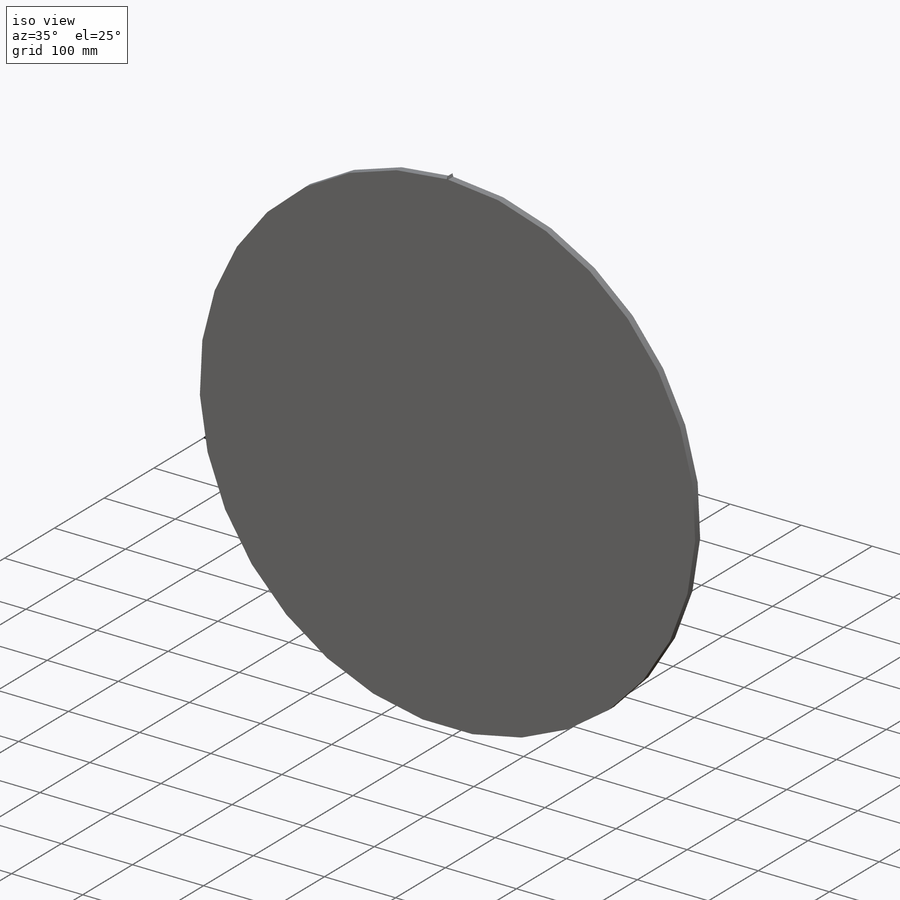
[diagram: iso view]
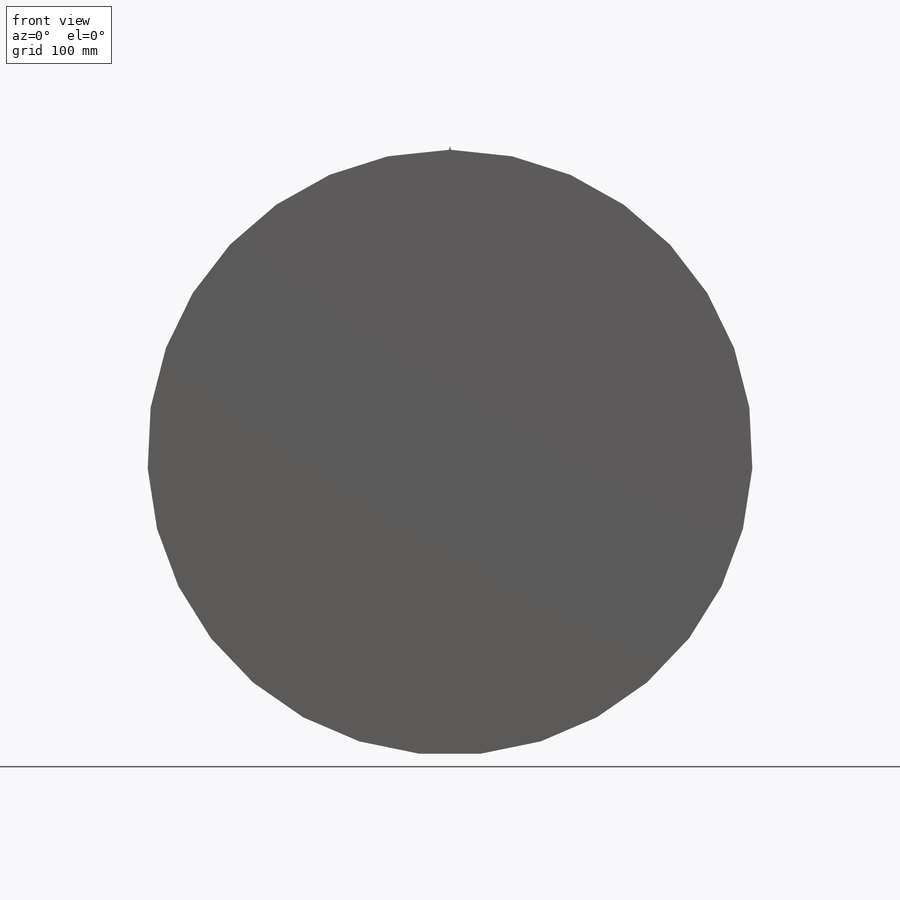
[diagram: front view]
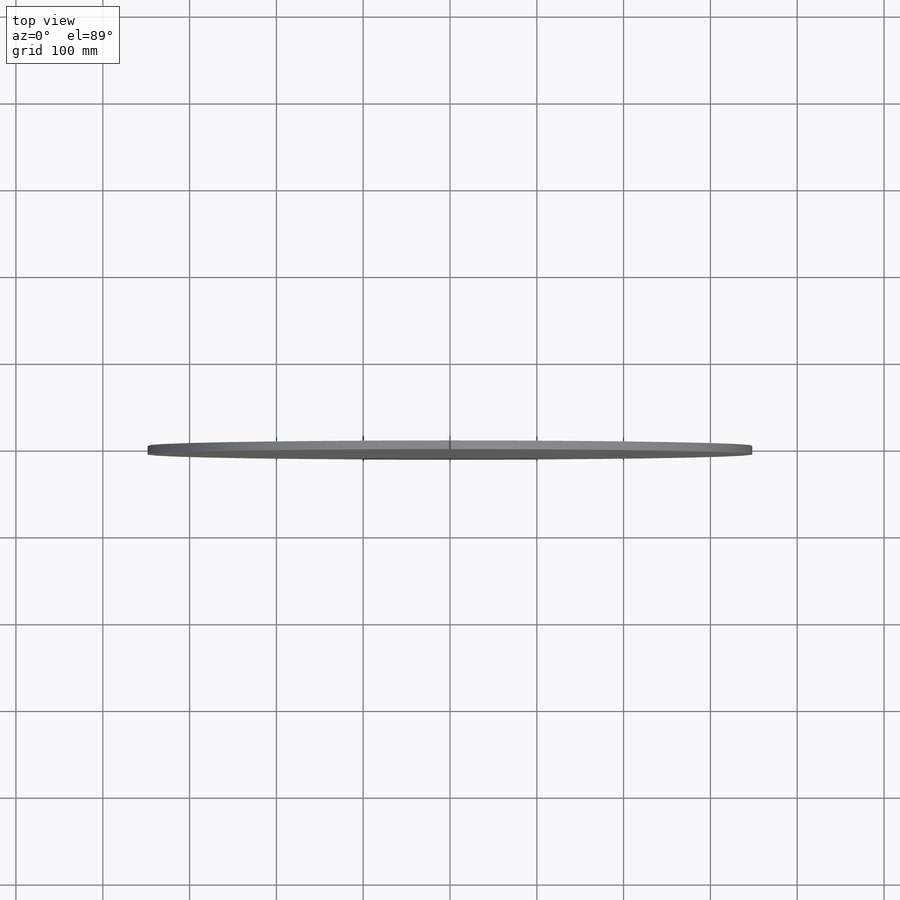
[diagram: top view]
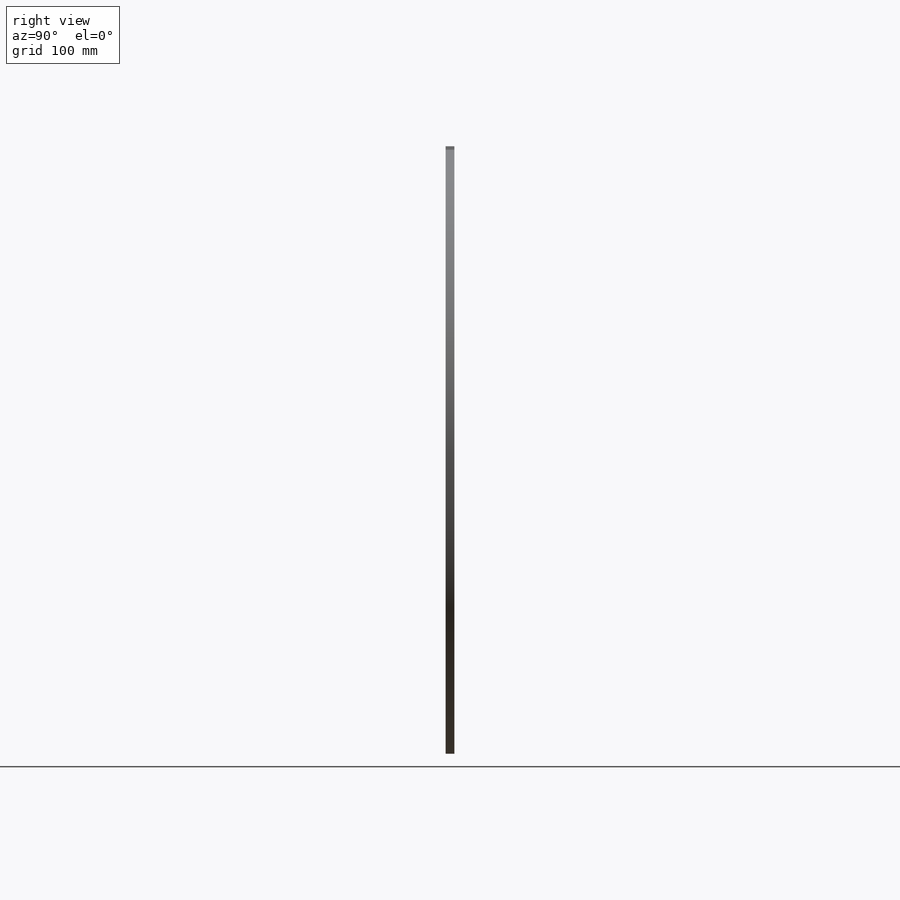
[diagram: right view]
SOLIDWORKS PART (.sldprt)
format: sldprt  version: not decoded by parser v0  size: 387,584 bytes
history: native  units: mm
features: sketch x3, pattern_circular x2, material x1, extrude x1 + 1 further entry (+12 scaffold rows collapsed)
feature tree (20):
  scaffold x12  (default folders/planes/origin — collapsed)
  material  "Material <not specified>"
  "Design Table"
  sketch  "Pitch Diameter"  dims[D1=700.0mm]
  sketch  "Sketch1"  dims[c1.D1=14.0mm c1.D2=5.0mm c1.D3=14.0mm c1.D4=~22.241922mm c2.D1=~5.360874mm c2.D2=~9.467075mm c3.D1=0.0mm c3.D2=0.0mm c3.D3=~0.117357mm c3.D4=~0.231211mm c3.D5=~0.341612mm c3.D6=~0.448611mm c3.D7=~0.55226mm c3.D8=~0.652611mm c3.D9=~0.749714mm c3.D10=~0.843621mm c3.D11=~0.934384mm c3.D12=~1.022056mm c3.D13=~1.023772mm c3.D14=~1.025489mm c3.D15=~1.029893mm c3.D16=~1.035776mm c3.D17=~1.044018mm c3.D18=~1.056206mm c3.D19=~1.075357mm c3.D20=~1.107386mm c3.D21=~1.163493mm c3.D22=~1.259765mm c3.D23=~1.397883mm c3.D24=0.0mm c3.D25=~352.869006mm c3.D26=~352.461872mm c3.D27=~352.06036mm c3.D28=~351.664493mm c3.D29=~351.274293mm c3.D30=~350.889783mm c3.D31=~350.510983mm c3.D32=~350.137915mm c3.D33=349.7706mm c3.D34=~349.409058mm c3.D35=~349.05331mm c3.D36=~349.046673mm c3.D37=~349.040037mm c3.D38=~349.024944mm c3.D39=~349.007302mm c3.D40=~348.986055mm c3.D41=~348.959666mm c3.D42=~348.925994mm c3.D43=~348.882538mm c3.D44=~348.828636mm c3.D45=~348.77362mm c3.D46=~348.747198mm]
  extrude  "Tooth"  Depth=10mm
  pattern_circular  "Teeth"  Count=2 Angle=18deg
  sketch  "Sketch6"  dims[D1=702.0mm]
  pattern_circular  "Addendum"  [2 undecoded]
decode coverage: 5 of 6 modeling features carry decoded parameters; 1 rows unclassified (native names shown)
note: ~ marks probable driven/reference dimensions
note: 2 parameter values undecoded
note: suppression state not decoded; provenance and decode notes live in map.json
